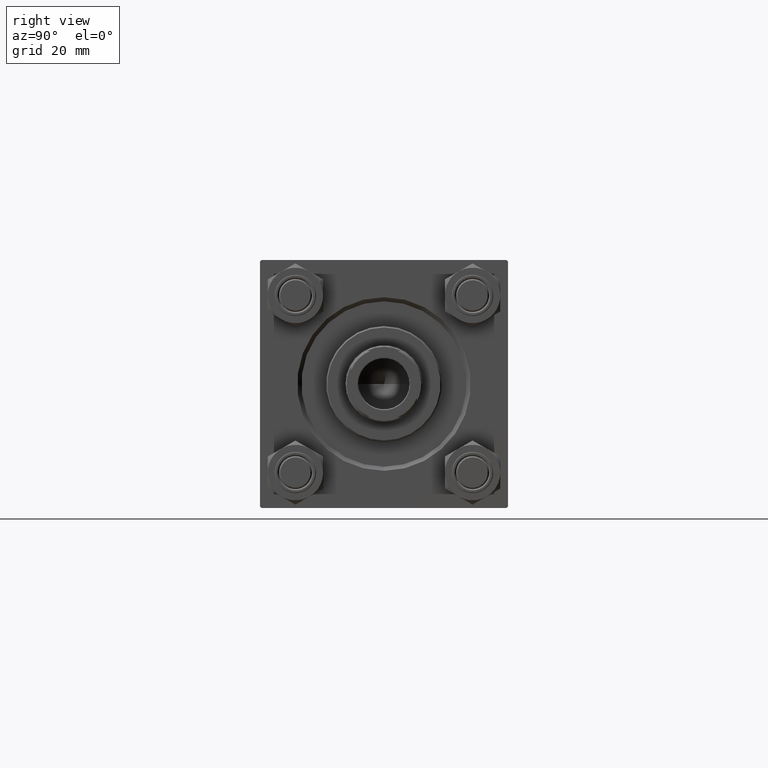
[diagram: clean part render]
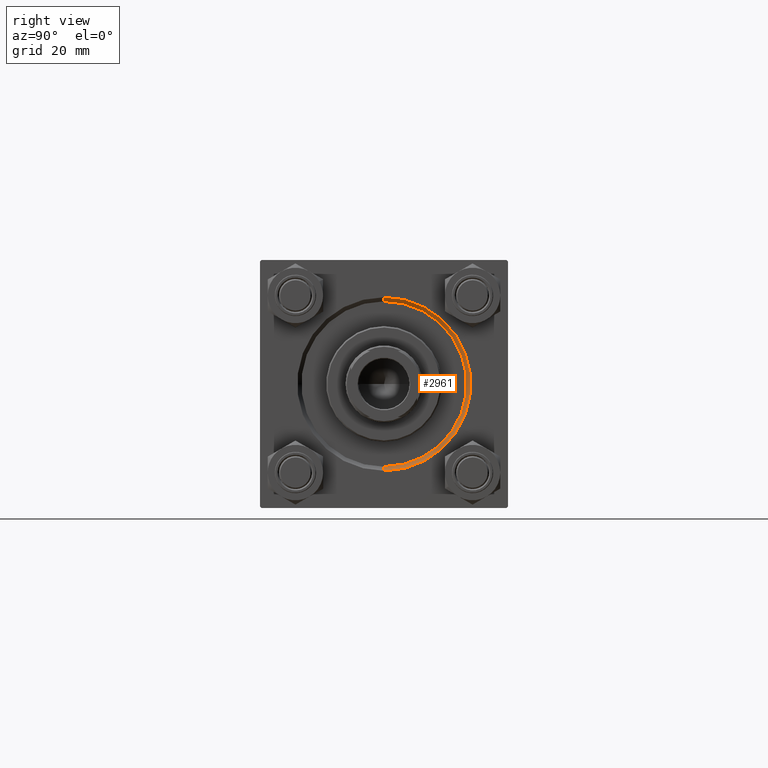
[diagram: same view with one face highlighted and labeled with its STEP entity id]
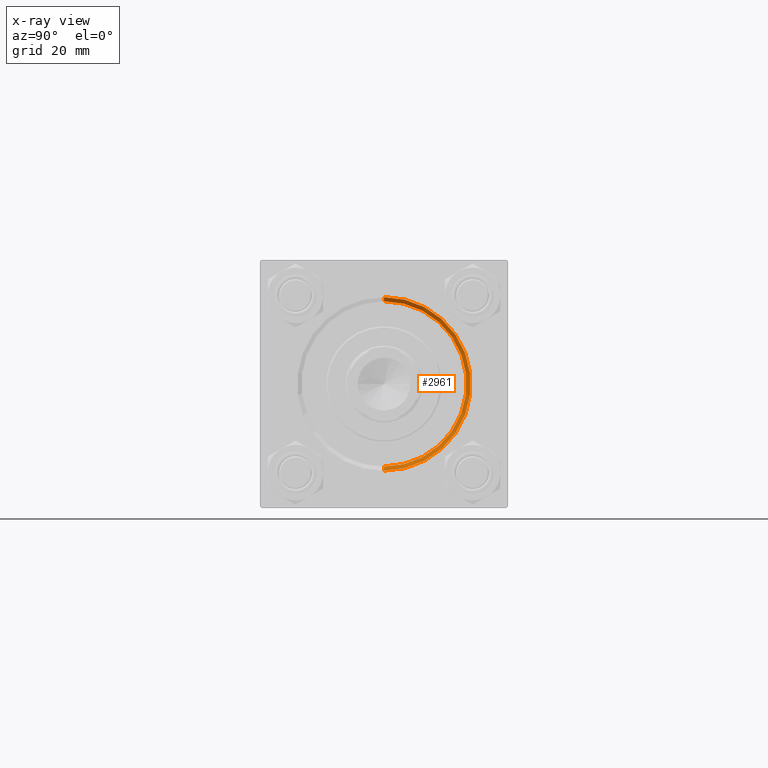
[diagram: x-ray of the same camera — body ghosted, the highlighted face saturated]
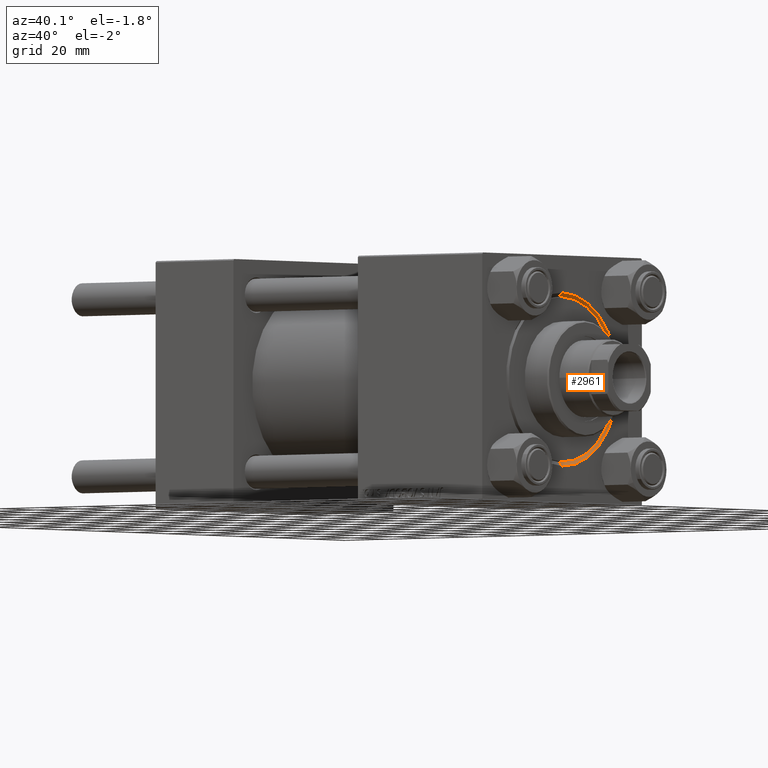
[diagram: same view with one face highlighted and labeled with its STEP entity id]
A machine part, right view. The second image highlights one B-rep face of the part: STEP entity #2961.
The next image is the same camera in x-ray: the body ghosted, the highlighted face saturated — about 0% of this face is hidden behind the body in this view.
A second angle (auxiliary view) of the same face is appended — the face is thin or edge-on in the first view.
In plain terms, the highlighted conical surface has half-angle 45 deg.
Its self-contained STEP definition (entity closure, byte-faithful):
#2855 = VERTEX_POINT ( 'NONE', #42785 ) ;
#2961 = ADVANCED_FACE ( 'NONE', ( #5007 ), #35725, .F. ) ;
#3916 = DIRECTION ( 'NONE',  ( 0.000000000000000000, 0.000000000000000000, 1.000000000000000000 ) ) ;
#5007 = FACE_OUTER_BOUND ( 'NONE', #22372, .T. ) ;
#10612 = CIRCLE ( 'NONE', #43599, 31.50000000000000000 ) ;
#12324 = AXIS2_PLACEMENT_3D ( 'NONE', #31375, #31118, #3916 ) ;
#12798 = DIRECTION ( 'NONE',  ( 0.000000000000000000, 0.000000000000000000, -1.000000000000000000 ) ) ;
#13637 = CARTESIAN_POINT ( 'NONE',  ( 153.5000000000000000, 0.000000000000000000, -30.00000000000000000 ) ) ;
#13963 = CIRCLE ( 'NONE', #12324, 30.00000000000000000 ) ;
#13974 = AXIS2_PLACEMENT_3D ( 'NONE', #17337, #43793, #12798 ) ;
#15216 = DIRECTION ( 'NONE',  ( 0.7071067811865474617, 8.659560562354932858E-17, 0.7071067811865474617 ) ) ;
#16838 = VERTEX_POINT ( 'NONE', #48964 ) ;
#17319 = VECTOR ( 'NONE', #49036, 1000.000000000000114 ) ;
#17337 = CARTESIAN_POINT ( 'NONE',  ( 153.5000000000000000, 0.000000000000000000, 0.000000000000000000 ) ) ;
#21283 = ORIENTED_EDGE ( 'NONE', *, *, #24970, .F. ) ;
#21323 = ORIENTED_EDGE ( 'NONE', *, *, #27795, .F. ) ;
#21520 = VECTOR ( 'NONE', #15216, 1000.000000000000114 ) ;
#22053 = CARTESIAN_POINT ( 'NONE',  ( 153.5000000000000000, 0.000000000000000000, -30.00000000000000000 ) ) ;
#22152 = VERTEX_POINT ( 'NONE', #23897 ) ;
#22372 = EDGE_LOOP ( 'NONE', ( #47387, #21323, #23153, #21283 ) ) ;
#22393 = CARTESIAN_POINT ( 'NONE',  ( 155.0000000000000000, 0.000000000000000000, 0.000000000000000000 ) ) ;
#22767 = CARTESIAN_POINT ( 'NONE',  ( 153.5000000000000000, 3.673940397442059178E-15, 30.00000000000000000 ) ) ;
#23153 = ORIENTED_EDGE ( 'NONE', *, *, #36009, .T. ) ;
#23897 = CARTESIAN_POINT ( 'NONE',  ( 155.0000000000000000, 0.000000000000000000, -31.50000000000000000 ) ) ;
#24970 = EDGE_CURVE ( 'NONE', #2855, #22152, #10612, .T. ) ;
#27795 = EDGE_CURVE ( 'NONE', #30056, #16838, #13963, .T. ) ;
#30056 = VERTEX_POINT ( 'NONE', #13637 ) ;
#31118 = DIRECTION ( 'NONE',  ( 1.000000000000000000, 0.000000000000000000, 0.000000000000000000 ) ) ;
#31375 = CARTESIAN_POINT ( 'NONE',  ( 153.5000000000000000, 0.000000000000000000, 0.000000000000000000 ) ) ;
#34002 = DIRECTION ( 'NONE',  ( 0.000000000000000000, 0.000000000000000000, 1.000000000000000000 ) ) ;
#35725 = CONICAL_SURFACE ( 'NONE', #13974, 30.00000000000000000, 0.7853981633974482790 ) ;
#36009 = EDGE_CURVE ( 'NONE', #30056, #22152, #38429, .T. ) ;
#37786 = DIRECTION ( 'NONE',  ( -1.000000000000000000, -0.000000000000000000, -0.000000000000000000 ) ) ;
#38429 = LINE ( 'NONE', #22053, #17319 ) ;
#41697 = LINE ( 'NONE', #22767, #21520 ) ;
#41854 = EDGE_CURVE ( 'NONE', #16838, #2855, #41697, .T. ) ;
#42785 = CARTESIAN_POINT ( 'NONE',  ( 155.0000000000000000, 3.857637417314162689E-15, 31.50000000000000000 ) ) ;
#43599 = AXIS2_PLACEMENT_3D ( 'NONE', #22393, #37786, #34002 ) ;
#43793 = DIRECTION ( 'NONE',  ( 1.000000000000000000, 0.000000000000000000, 0.000000000000000000 ) ) ;
#47387 = ORIENTED_EDGE ( 'NONE', *, *, #41854, .F. ) ;
#48964 = CARTESIAN_POINT ( 'NONE',  ( 153.5000000000000000, 3.673940397442059178E-15, 30.00000000000000000 ) ) ;
#49036 = DIRECTION ( 'NONE',  ( 0.7071067811865474617, 0.000000000000000000, -0.7071067811865474617 ) ) ;